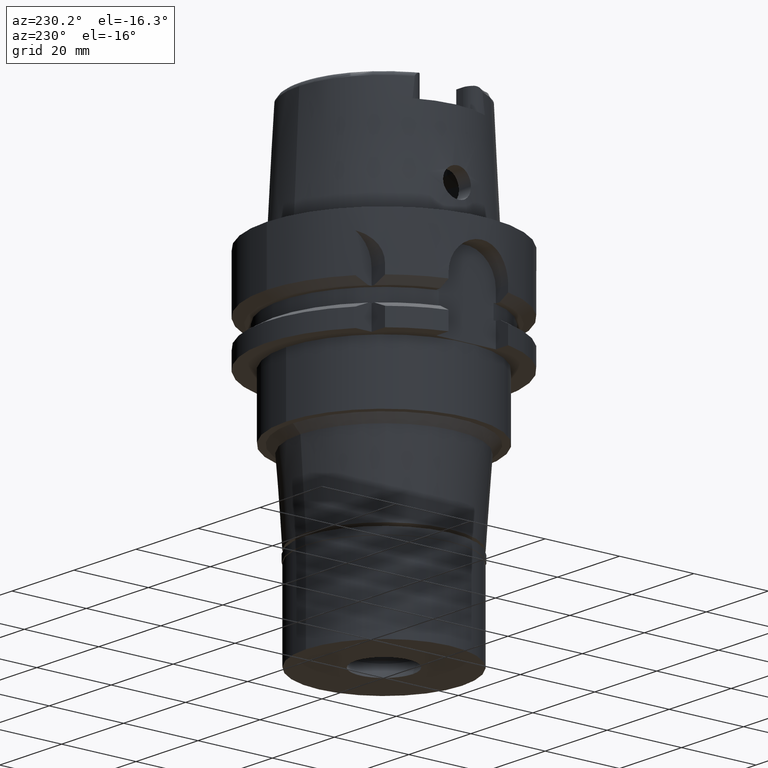
[diagram: clean part render]
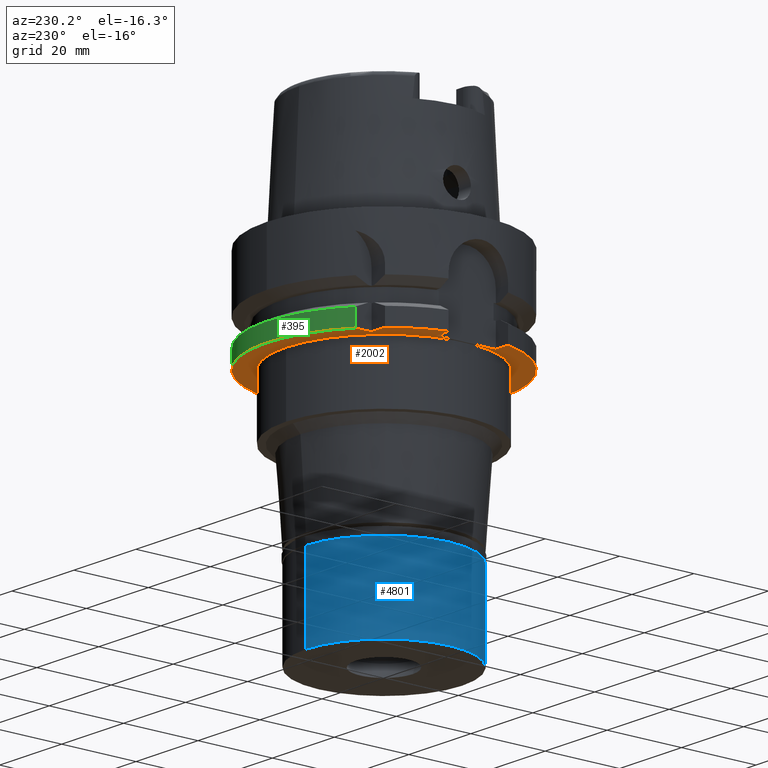
[diagram: same view with three faces highlighted in distinct colors, each labeled with its STEP entity id]
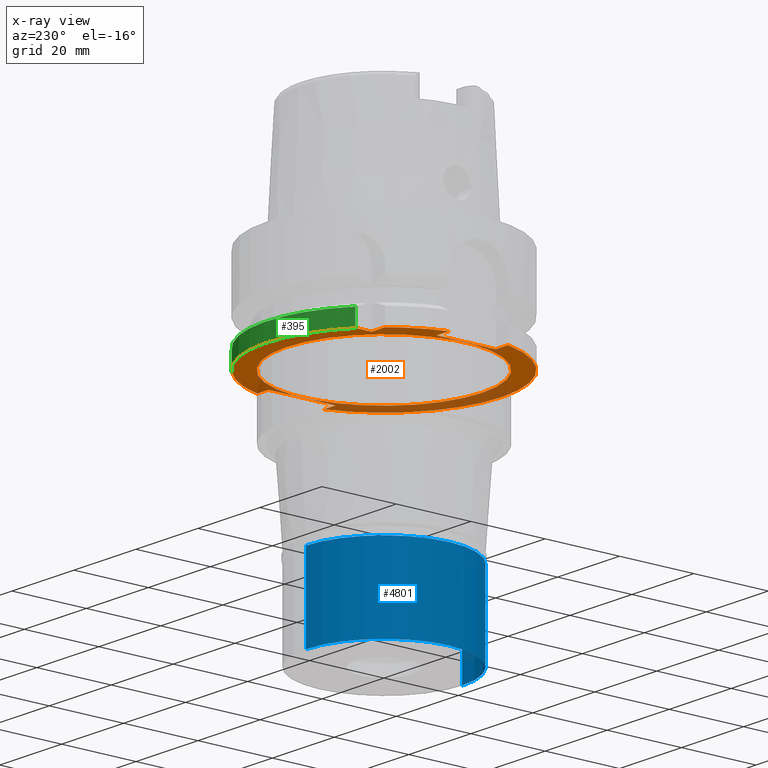
[diagram: x-ray of the same camera — body ghosted, the three highlighted faces saturated]
A machine part, auxiliary view with three faces highlighted in distinct colors.
The next image is the same camera in x-ray (body ghosted, the three faces saturated) — at least one of them is partly hidden behind the body in this view.
Their STEP definitions:

[orange] entity #2002 — the highlighted planar face has unit normal (0, 0, 1).
#122 = EDGE_CURVE ( 'NONE', #1308, #4139, #5229, .T. ) ;
#145 = EDGE_CURVE ( 'NONE', #3033, #3565, #1606, .T. ) ;
#150 = AXIS2_PLACEMENT_3D ( 'NONE', #5360, #1943, #2767 ) ;
#299 = ORIENTED_EDGE ( 'NONE', *, *, #2805, .F. ) ;
#410 = LINE ( 'NONE', #2460, #2250 ) ;
#482 = CARTESIAN_POINT ( 'NONE',  ( 30.18691769625000276, 9.000000000000000000, -26.00000000000000000 ) ) ;
#499 = EDGE_CURVE ( 'NONE', #5200, #755, #4441, .T. ) ;
#585 = VECTOR ( 'NONE', #2577, 1000.000000000000000 ) ;
#648 = ORIENTED_EDGE ( 'NONE', *, *, #1536, .T. ) ;
#713 = EDGE_CURVE ( 'NONE', #4512, #3033, #4230, .T. ) ;
#755 = VERTEX_POINT ( 'NONE', #5518 ) ;
#783 = CARTESIAN_POINT ( 'NONE',  ( 0.0000000000000000000, 26.30000000000000071, -26.00000000000000000 ) ) ;
#802 = AXIS2_PLACEMENT_3D ( 'NONE', #1241, #4694, #1590 ) ;
#924 = EDGE_CURVE ( 'NONE', #3520, #5200, #4428, .T. ) ;
#1123 = EDGE_LOOP ( 'NONE', ( #2662, #3159, #3916, #5074, #2717, #1537, #3180, #4397, #5384, #4856, #648 ) ) ;
#1125 = CARTESIAN_POINT ( 'NONE',  ( -30.46719547316000032, -8.000000000000000000, -26.00000000000000000 ) ) ;
#1133 = CARTESIAN_POINT ( 'NONE',  ( 0.0000000000000000000, 0.0000000000000000000, -26.00000000000000000 ) ) ;
#1241 = CARTESIAN_POINT ( 'NONE',  ( 0.0000000000000000000, 0.0000000000000000000, -26.00000000000000000 ) ) ;
#1273 = EDGE_CURVE ( 'NONE', #3022, #3520, #3670, .T. ) ;
#1284 = ORIENTED_EDGE ( 'NONE', *, *, #1497, .F. ) ;
#1308 = VERTEX_POINT ( 'NONE', #1125 ) ;
#1375 = EDGE_CURVE ( 'NONE', #5028, #3565, #410, .T. ) ;
#1386 = DIRECTION ( 'NONE',  ( 0.0000000000000000000, 1.000000000000000000, 0.0000000000000000000 ) ) ;
#1406 = DIRECTION ( 'NONE',  ( 1.000000000000000000, -7.275179563199999529E-14, 0.0000000000000000000 ) ) ;
#1497 = EDGE_CURVE ( 'NONE', #2420, #4451, #5048, .T. ) ;
#1536 = EDGE_CURVE ( 'NONE', #4512, #755, #2195, .T. ) ;
#1537 = ORIENTED_EDGE ( 'NONE', *, *, #4002, .F. ) ;
#1544 = FACE_OUTER_BOUND ( 'NONE', #1123, .T. ) ;
#1590 = DIRECTION ( 'NONE',  ( 0.0000000000000000000, 1.000000000000000000, 0.0000000000000000000 ) ) ;
#1594 = EDGE_LOOP ( 'NONE', ( #1284, #299 ) ) ;
#1606 = CIRCLE ( 'NONE', #2795, 31.50000000000000711 ) ;
#1769 = DIRECTION ( 'NONE',  ( 1.556703139445999911E-13, 1.000000000000000000, 0.0000000000000000000 ) ) ;
#1784 = EDGE_CURVE ( 'NONE', #2059, #5028, #4467, .T. ) ;
#1795 = VECTOR ( 'NONE', #1386, 1000.000000000000000 ) ;
#1802 = CARTESIAN_POINT ( 'NONE',  ( -30.46719547316000032, 8.000000000000000000, -26.00000000000000000 ) ) ;
#1863 = CARTESIAN_POINT ( 'NONE',  ( 26.50000000000000000, 9.000000000000000000, -26.00000000000000000 ) ) ;
#1943 = DIRECTION ( 'NONE',  ( 0.0000000000000000000, 0.0000000000000000000, -1.000000000000000000 ) ) ;
#1973 = CIRCLE ( 'NONE', #150, 26.30000000000000071 ) ;
#2002 = ADVANCED_FACE ( 'NONE', ( #1544, #5377 ), #3274, .F. ) ;
#2044 = DIRECTION ( 'NONE',  ( 1.000000000000000000, 0.0000000000000000000, 0.0000000000000000000 ) ) ;
#2059 = VERTEX_POINT ( 'NONE', #4654 ) ;
#2112 = CARTESIAN_POINT ( 'NONE',  ( -26.50000000000000000, 8.000000000000000000, -26.00000000000000000 ) ) ;
#2195 = LINE ( 'NONE', #3921, #3969 ) ;
#2250 = VECTOR ( 'NONE', #4282, 1000.000000000000000 ) ;
#2275 = DIRECTION ( 'NONE',  ( 0.0000000000000000000, -1.000000000000000000, 0.0000000000000000000 ) ) ;
#2318 = CARTESIAN_POINT ( 'NONE',  ( 26.50000000000000000, -9.000000000000000000, -26.00000000000000000 ) ) ;
#2420 = VERTEX_POINT ( 'NONE', #783 ) ;
#2460 = CARTESIAN_POINT ( 'NONE',  ( -26.50000000000000000, 8.000000000000000000, -26.00000000000000000 ) ) ;
#2577 = DIRECTION ( 'NONE',  ( 1.000000000000000000, 6.889739586341000002E-14, 0.0000000000000000000 ) ) ;
#2641 = CARTESIAN_POINT ( 'NONE',  ( 0.0000000000000000000, 0.0000000000000000000, -26.00000000000000000 ) ) ;
#2662 = ORIENTED_EDGE ( 'NONE', *, *, #499, .F. ) ;
#2717 = ORIENTED_EDGE ( 'NONE', *, *, #122, .F. ) ;
#2734 = DIRECTION ( 'NONE',  ( -0.7725773665802099233, 0.6349206349206079070, 0.0000000000000000000 ) ) ;
#2767 = DIRECTION ( 'NONE',  ( 0.0000000000000000000, -1.000000000000000000, 0.0000000000000000000 ) ) ;
#2795 = AXIS2_PLACEMENT_3D ( 'NONE', #2641, #4471, #2734 ) ;
#2805 = EDGE_CURVE ( 'NONE', #4451, #2420, #1973, .T. ) ;
#2856 = DIRECTION ( 'NONE',  ( 0.0000000000000000000, 0.0000000000000000000, 1.000000000000000000 ) ) ;
#3022 = VERTEX_POINT ( 'NONE', #4792 ) ;
#3033 = VERTEX_POINT ( 'NONE', #3480 ) ;
#3159 = ORIENTED_EDGE ( 'NONE', *, *, #924, .F. ) ;
#3180 = ORIENTED_EDGE ( 'NONE', *, *, #1784, .T. ) ;
#3192 = DIRECTION ( 'NONE',  ( 0.0000000000000000000, 1.000000000000000000, 0.0000000000000000000 ) ) ;
#3227 = CARTESIAN_POINT ( 'NONE',  ( -26.50000000000000000, -8.000000000000000000, -26.00000000000000000 ) ) ;
#3245 = DIRECTION ( 'NONE',  ( 0.0000000000000000000, 1.000000000000000000, 0.0000000000000000000 ) ) ;
#3274 = PLANE ( 'NONE',  #4784 ) ;
#3301 = CARTESIAN_POINT ( 'NONE',  ( 0.0000000000000000000, 0.0000000000000000000, -26.00000000000000000 ) ) ;
#3336 = CARTESIAN_POINT ( 'NONE',  ( 30.18691769625000276, -9.000000000000000000, -26.00000000000000000 ) ) ;
#3388 = LINE ( 'NONE', #3793, #585 ) ;
#3480 = CARTESIAN_POINT ( 'NONE',  ( -24.33618704727999926, 20.00000000000000000, -26.00000000000000000 ) ) ;
#3520 = VERTEX_POINT ( 'NONE', #1863 ) ;
#3565 = VERTEX_POINT ( 'NONE', #1802 ) ;
#3601 = DIRECTION ( 'NONE',  ( -1.000000000000000000, -8.686570378870999660E-14, 0.0000000000000000000 ) ) ;
#3670 = LINE ( 'NONE', #2318, #4449 ) ;
#3787 = VECTOR ( 'NONE', #4702, 1000.000000000000000 ) ;
#3793 = CARTESIAN_POINT ( 'NONE',  ( 26.50000000000000000, -9.000000000000000000, -26.00000000000000000 ) ) ;
#3916 = ORIENTED_EDGE ( 'NONE', *, *, #1273, .F. ) ;
#3921 = CARTESIAN_POINT ( 'NONE',  ( -20.00000000000000000, 20.00000000000000000, -26.00000000000000000 ) ) ;
#3969 = VECTOR ( 'NONE', #1769, 1000.000000000000000 ) ;
#3988 = CARTESIAN_POINT ( 'NONE',  ( 26.50000000000000000, 9.000000000000000000, -26.00000000000000000 ) ) ;
#4002 = EDGE_CURVE ( 'NONE', #2059, #1308, #5326, .T. ) ;
#4070 = AXIS2_PLACEMENT_3D ( 'NONE', #5296, #4444, #2275 ) ;
#4139 = VERTEX_POINT ( 'NONE', #3336 ) ;
#4140 = DIRECTION ( 'NONE',  ( 0.0000000000000000000, 0.0000000000000000000, 1.000000000000000000 ) ) ;
#4162 = AXIS2_PLACEMENT_3D ( 'NONE', #3301, #4140, #3192 ) ;
#4184 = EDGE_CURVE ( 'NONE', #3022, #4139, #3388, .T. ) ;
#4230 = LINE ( 'NONE', #4725, #3787 ) ;
#4282 = DIRECTION ( 'NONE',  ( -1.000000000000000000, 8.776122650817999518E-14, 0.0000000000000000000 ) ) ;
#4397 = ORIENTED_EDGE ( 'NONE', *, *, #1375, .T. ) ;
#4428 = LINE ( 'NONE', #3988, #5602 ) ;
#4441 = CIRCLE ( 'NONE', #4162, 31.50000000000000000 ) ;
#4444 = DIRECTION ( 'NONE',  ( 0.0000000000000000000, 0.0000000000000000000, 1.000000000000000000 ) ) ;
#4449 = VECTOR ( 'NONE', #3245, 1000.000000000000000 ) ;
#4451 = VERTEX_POINT ( 'NONE', #5060 ) ;
#4467 = LINE ( 'NONE', #5265, #1795 ) ;
#4471 = DIRECTION ( 'NONE',  ( 0.0000000000000000000, 0.0000000000000000000, 1.000000000000000000 ) ) ;
#4512 = VERTEX_POINT ( 'NONE', #4623 ) ;
#4623 = CARTESIAN_POINT ( 'NONE',  ( -20.00000000000000000, 20.00000000000000000, -26.00000000000000000 ) ) ;
#4654 = CARTESIAN_POINT ( 'NONE',  ( -26.50000000000000000, -8.000000000000000000, -26.00000000000000000 ) ) ;
#4694 = DIRECTION ( 'NONE',  ( 0.0000000000000000000, 0.0000000000000000000, -1.000000000000000000 ) ) ;
#4702 = DIRECTION ( 'NONE',  ( -1.000000000000000000, -1.540316790609000194E-13, 0.0000000000000000000 ) ) ;
#4725 = CARTESIAN_POINT ( 'NONE',  ( -20.00000000000000000, 20.00000000000000000, -26.00000000000000000 ) ) ;
#4784 = AXIS2_PLACEMENT_3D ( 'NONE', #1133, #2856, #2044 ) ;
#4792 = CARTESIAN_POINT ( 'NONE',  ( 26.50000000000000000, -9.000000000000000000, -26.00000000000000000 ) ) ;
#4856 = ORIENTED_EDGE ( 'NONE', *, *, #713, .F. ) ;
#5028 = VERTEX_POINT ( 'NONE', #2112 ) ;
#5048 = CIRCLE ( 'NONE', #802, 26.30000000000000071 ) ;
#5060 = CARTESIAN_POINT ( 'NONE',  ( 0.0000000000000000000, -26.30000000000000071, -26.00000000000000000 ) ) ;
#5074 = ORIENTED_EDGE ( 'NONE', *, *, #4184, .T. ) ;
#5200 = VERTEX_POINT ( 'NONE', #482 ) ;
#5229 = CIRCLE ( 'NONE', #4070, 31.50000000000000000 ) ;
#5265 = CARTESIAN_POINT ( 'NONE',  ( -26.50000000000000000, -8.000000000000000000, -26.00000000000000000 ) ) ;
#5296 = CARTESIAN_POINT ( 'NONE',  ( 0.0000000000000000000, 0.0000000000000000000, -26.00000000000000000 ) ) ;
#5326 = LINE ( 'NONE', #3227, #5470 ) ;
#5360 = CARTESIAN_POINT ( 'NONE',  ( 0.0000000000000000000, 0.0000000000000000000, -26.00000000000000000 ) ) ;
#5377 = FACE_BOUND ( 'NONE', #1594, .T. ) ;
#5384 = ORIENTED_EDGE ( 'NONE', *, *, #145, .F. ) ;
#5470 = VECTOR ( 'NONE', #3601, 1000.000000000000000 ) ;
#5518 = CARTESIAN_POINT ( 'NONE',  ( -20.00000000000000000, 24.33618704727999926, -26.00000000000000000 ) ) ;
#5602 = VECTOR ( 'NONE', #1406, 1000.000000000000000 ) ;

[blue] entity #4801 — the highlighted cylindrical surface (partial cylindrical patch) has radius 21 mm, axis along (0, 0, -1).
#74 = ORIENTED_EDGE ( 'NONE', *, *, #3231, .T. ) ;
#270 = CARTESIAN_POINT ( 'NONE',  ( 0.0000000000000000000, 0.0000000000000000000, -24.29999999999999716 ) ) ;
#285 = ORIENTED_EDGE ( 'NONE', *, *, #3173, .T. ) ;
#328 = DIRECTION ( 'NONE',  ( 0.0000000000000000000, 0.0000000000000000000, 1.000000000000000000 ) ) ;
#364 = CARTESIAN_POINT ( 'NONE',  ( 0.0000000000000000000, 0.0000000000000000000, -2.000000000000000000 ) ) ;
#382 = VERTEX_POINT ( 'NONE', #474 ) ;
#474 = CARTESIAN_POINT ( 'NONE',  ( 0.0000000000000000000, 21.00000000000000000, -2.000000000000000000 ) ) ;
#710 = DIRECTION ( 'NONE',  ( 0.0000000000000000000, 0.0000000000000000000, -1.000000000000000000 ) ) ;
#796 = DIRECTION ( 'NONE',  ( 0.0000000000000000000, 0.0000000000000000000, -1.000000000000000000 ) ) ;
#842 = DIRECTION ( 'NONE',  ( 0.0000000000000000000, -1.000000000000000000, 0.0000000000000000000 ) ) ;
#1477 = DIRECTION ( 'NONE',  ( 0.0000000000000000000, -1.000000000000000000, 0.0000000000000000000 ) ) ;
#1496 = AXIS2_PLACEMENT_3D ( 'NONE', #270, #328, #5456 ) ;
#1554 = FACE_OUTER_BOUND ( 'NONE', #3728, .T. ) ;
#1583 = CARTESIAN_POINT ( 'NONE',  ( 0.0000000000000000000, 0.0000000000000000000, 0.0000000000000000000 ) ) ;
#1758 = AXIS2_PLACEMENT_3D ( 'NONE', #1583, #710, #1477 ) ;
#1855 = VECTOR ( 'NONE', #796, 1000.000000000000000 ) ;
#2074 = EDGE_CURVE ( 'NONE', #2894, #382, #3785, .T. ) ;
#2778 = VECTOR ( 'NONE', #5027, 1000.000000000000000 ) ;
#2871 = CARTESIAN_POINT ( 'NONE',  ( 0.0000000000000000000, -21.00000000000000000, -2.000000000000000000 ) ) ;
#2878 = CARTESIAN_POINT ( 'NONE',  ( 0.0000000000000000000, 21.00000000000000000, -2.000000000000000000 ) ) ;
#2894 = VERTEX_POINT ( 'NONE', #2871 ) ;
#3173 = EDGE_CURVE ( 'NONE', #382, #4942, #3600, .T. ) ;
#3231 = EDGE_CURVE ( 'NONE', #4942, #3811, #4046, .T. ) ;
#3600 = LINE ( 'NONE', #2878, #2778 ) ;
#3728 = EDGE_LOOP ( 'NONE', ( #74, #3844, #4170, #285 ) ) ;
#3785 = CIRCLE ( 'NONE', #4962, 21.00000000000000000 ) ;
#3803 = CARTESIAN_POINT ( 'NONE',  ( 0.0000000000000000000, 21.00000000000000000, -24.29999999999999716 ) ) ;
#3811 = VERTEX_POINT ( 'NONE', #4221 ) ;
#3844 = ORIENTED_EDGE ( 'NONE', *, *, #5351, .F. ) ;
#4046 = CIRCLE ( 'NONE', #1496, 21.00000000000000000 ) ;
#4170 = ORIENTED_EDGE ( 'NONE', *, *, #2074, .T. ) ;
#4221 = CARTESIAN_POINT ( 'NONE',  ( 0.0000000000000000000, -21.00000000000000000, -24.29999999999999716 ) ) ;
#4659 = LINE ( 'NONE', #5179, #1855 ) ;
#4801 = ADVANCED_FACE ( 'NONE', ( #1554 ), #5358, .T. ) ;
#4942 = VERTEX_POINT ( 'NONE', #3803 ) ;
#4962 = AXIS2_PLACEMENT_3D ( 'NONE', #364, #5519, #842 ) ;
#5027 = DIRECTION ( 'NONE',  ( 0.0000000000000000000, 0.0000000000000000000, -1.000000000000000000 ) ) ;
#5179 = CARTESIAN_POINT ( 'NONE',  ( 0.0000000000000000000, -21.00000000000000000, -2.000000000000000000 ) ) ;
#5351 = EDGE_CURVE ( 'NONE', #2894, #3811, #4659, .T. ) ;
#5358 = CYLINDRICAL_SURFACE ( 'NONE', #1758, 21.00000000000000000 ) ;
#5456 = DIRECTION ( 'NONE',  ( 0.0000000000000000000, 1.000000000000000000, 0.0000000000000000000 ) ) ;
#5519 = DIRECTION ( 'NONE',  ( 0.0000000000000000000, 0.0000000000000000000, -1.000000000000000000 ) ) ;

[green] entity #395 — the highlighted cylindrical surface (partial cylindrical patch) has radius 31.5 mm, axis along (0, 0, 1).
#76 = DIRECTION ( 'NONE',  ( 0.0000000000000000000, 0.0000000000000000000, 1.000000000000000000 ) ) ;
#326 = CARTESIAN_POINT ( 'NONE',  ( 30.18691748946999809, 9.000000693554000009, -21.37750466881000122 ) ) ;
#381 = DIRECTION ( 'NONE',  ( -4.473286451663943195E-08, 1.500388828639979384E-07, 0.9999999999999876765 ) ) ;
#395 = ADVANCED_FACE ( 'NONE', ( #2209 ), #5288, .T. ) ;
#426 = EDGE_CURVE ( 'NONE', #2124, #1404, #705, .T. ) ;
#482 = CARTESIAN_POINT ( 'NONE',  ( 30.18691769625000276, 9.000000000000000000, -26.00000000000000000 ) ) ;
#499 = EDGE_CURVE ( 'NONE', #5200, #755, #4441, .T. ) ;
#705 = CIRCLE ( 'NONE', #3693, 31.50000000000000711 ) ;
#755 = VERTEX_POINT ( 'NONE', #5518 ) ;
#819 = CARTESIAN_POINT ( 'NONE',  ( -20.00001377820999693, 24.33617572402999940, -21.37754845249999747 ) ) ;
#996 = DIRECTION ( 'NONE',  ( 0.0000000000000000000, 1.000000000000000000, 0.0000000000000000000 ) ) ;
#1076 = EDGE_LOOP ( 'NONE', ( #3672, #5041, #3324, #4798 ) ) ;
#1082 = AXIS2_PLACEMENT_3D ( 'NONE', #3937, #76, #996 ) ;
#1094 = CARTESIAN_POINT ( 'NONE',  ( -20.00000000000000000, 24.33618704727999926, -26.00000000000000000 ) ) ;
#1359 = CARTESIAN_POINT ( 'NONE',  ( 0.0000000000000000000, 0.0000000000000000000, -21.37749907476000288 ) ) ;
#1404 = VERTEX_POINT ( 'NONE', #326 ) ;
#1503 = CARTESIAN_POINT ( 'NONE',  ( -20.00000000000000000, 24.33618327286396621, -24.45918281749999679 ) ) ;
#1560 = EDGE_CURVE ( 'NONE', #2124, #755, #5128, .T. ) ;
#1756 = DIRECTION ( 'NONE',  ( 0.0000000000000000000, 0.0000000000000000000, -1.000000000000000000 ) ) ;
#2124 = VERTEX_POINT ( 'NONE', #819 ) ;
#2172 = CARTESIAN_POINT ( 'NONE',  ( 30.18691769625000276, 9.000000000000000000, -26.00000000000000000 ) ) ;
#2209 = FACE_OUTER_BOUND ( 'NONE', #1076, .T. ) ;
#2265 = VECTOR ( 'NONE', #381, 1000.000000000000114 ) ;
#2517 = EDGE_CURVE ( 'NONE', #5200, #1404, #4283, .T. ) ;
#2843 = CARTESIAN_POINT ( 'NONE',  ( -20.00000000000000000, 24.33617949844698458, -22.91836563500000068 ) ) ;
#3083 = DIRECTION ( 'NONE',  ( -0.6349206349206079070, 0.7725773665802099233, 0.0000000000000000000 ) ) ;
#3192 = DIRECTION ( 'NONE',  ( 0.0000000000000000000, 1.000000000000000000, 0.0000000000000000000 ) ) ;
#3301 = CARTESIAN_POINT ( 'NONE',  ( 0.0000000000000000000, 0.0000000000000000000, -26.00000000000000000 ) ) ;
#3324 = ORIENTED_EDGE ( 'NONE', *, *, #499, .T. ) ;
#3672 = ORIENTED_EDGE ( 'NONE', *, *, #426, .T. ) ;
#3693 = AXIS2_PLACEMENT_3D ( 'NONE', #1359, #1756, #3083 ) ;
#3937 = CARTESIAN_POINT ( 'NONE',  ( 0.0000000000000000000, 0.0000000000000000000, 0.0000000000000000000 ) ) ;
#3951 = CARTESIAN_POINT ( 'NONE',  ( -20.00001377820999693, 24.33617572402999940, -21.37754845249999747 ) ) ;
#4140 = DIRECTION ( 'NONE',  ( 0.0000000000000000000, 0.0000000000000000000, 1.000000000000000000 ) ) ;
#4162 = AXIS2_PLACEMENT_3D ( 'NONE', #3301, #4140, #3192 ) ;
#4283 = LINE ( 'NONE', #2172, #2265 ) ;
#4441 = CIRCLE ( 'NONE', #4162, 31.50000000000000000 ) ;
#4798 = ORIENTED_EDGE ( 'NONE', *, *, #1560, .F. ) ;
#5041 = ORIENTED_EDGE ( 'NONE', *, *, #2517, .F. ) ;
#5128 = B_SPLINE_CURVE_WITH_KNOTS ( 'NONE', 3,
 ( #3951, #2843, #1503, #1094 ),
 .UNSPECIFIED., .F., .F.,
 ( 4, 4 ),
 ( 0.0000000000000000000, 1.000000000000000000 ),
 .UNSPECIFIED. ) ;
#5200 = VERTEX_POINT ( 'NONE', #482 ) ;
#5288 = CYLINDRICAL_SURFACE ( 'NONE', #1082, 31.50000000000000000 ) ;
#5518 = CARTESIAN_POINT ( 'NONE',  ( -20.00000000000000000, 24.33618704727999926, -26.00000000000000000 ) ) ;